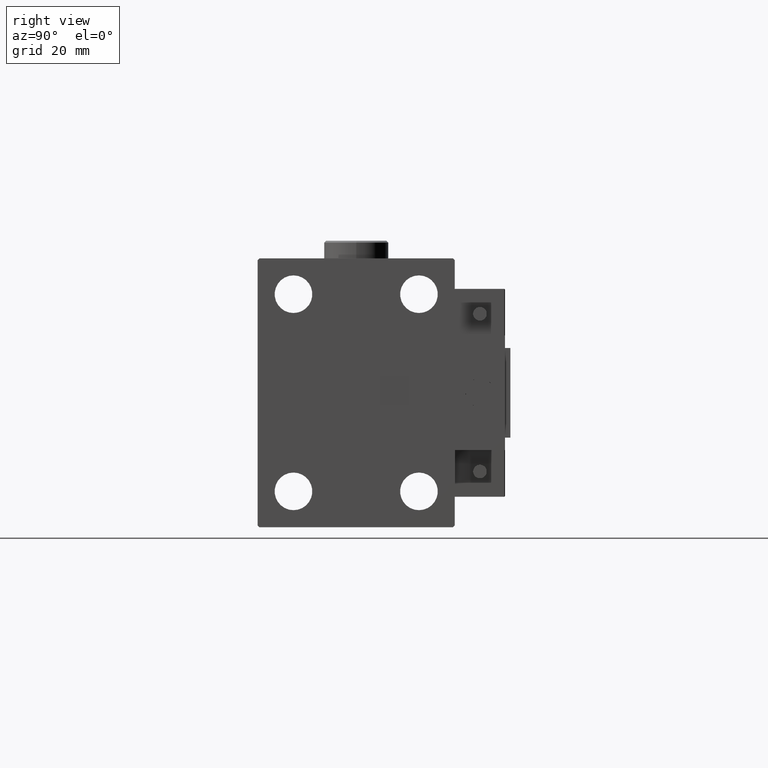
[diagram: clean part render]
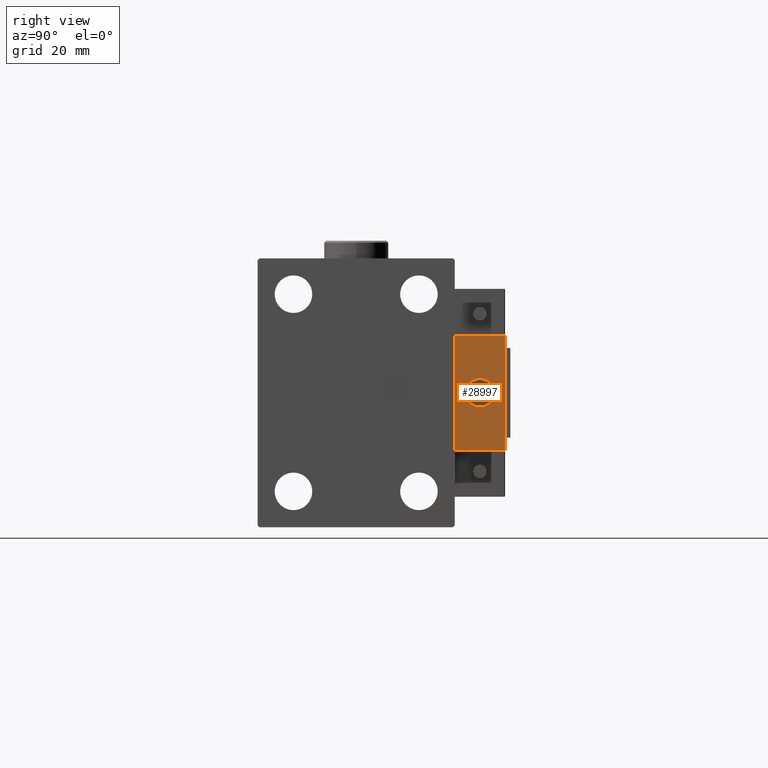
[diagram: same view with one face highlighted and labeled with its STEP entity id]
A machine part, right view. The second image highlights one B-rep face of the part: STEP entity #28997.
In plain terms, the highlighted planar face has unit normal (-1, 0, 0).
Its self-contained STEP definition (entity closure, byte-faithful):
#1384 = DIRECTION ( 'NONE',  ( -0.000000000000000000, 0.000000000000000000, 1.000000000000000000 ) ) ;
#1866 = DIRECTION ( 'NONE',  ( 0.000000000000000000, 0.000000000000000000, 1.000000000000000000 ) ) ;
#1978 = CARTESIAN_POINT ( 'NONE',  ( 10.00000000000000000, 7.000000000000000000, 15.99999999999999289 ) ) ;
#2376 = ORIENTED_EDGE ( 'NONE', *, *, #34386, .T. ) ;
#5510 = CARTESIAN_POINT ( 'NONE',  ( 10.00000000000000000, 7.000000000000000000, -16.00000000000000711 ) ) ;
#6626 = VECTOR ( 'NONE', #18307, 1000.000000000000000 ) ;
#8367 = PLANE ( 'NONE',  #32333 ) ;
#8414 = CIRCLE ( 'NONE', #20399, 4.000000000000000000 ) ;
#8656 = VERTEX_POINT ( 'NONE', #47011 ) ;
#9198 = EDGE_CURVE ( 'NONE', #8656, #45090, #50605, .T. ) ;
#9811 = ORIENTED_EDGE ( 'NONE', *, *, #48854, .T. ) ;
#10397 = LINE ( 'NONE', #23287, #33624 ) ;
#10785 = CARTESIAN_POINT ( 'NONE',  ( 10.00000000000000000, 7.000000000000000000, 15.99999999999999289 ) ) ;
#11591 = DIRECTION ( 'NONE',  ( 0.000000000000000000, 0.000000000000000000, 1.000000000000000000 ) ) ;
#11799 = AXIS2_PLACEMENT_3D ( 'NONE', #47498, #51005, #1866 ) ;
#12381 = EDGE_LOOP ( 'NONE', ( #52990, #52326, #35387, #9811 ) ) ;
#18307 = DIRECTION ( 'NONE',  ( 0.000000000000000000, 0.000000000000000000, -1.000000000000000000 ) ) ;
#19379 = CARTESIAN_POINT ( 'NONE',  ( 10.00000000000000000, 0.000000000000000000, 0.000000000000000000 ) ) ;
#20227 = VERTEX_POINT ( 'NONE', #24013 ) ;
#20399 = AXIS2_PLACEMENT_3D ( 'NONE', #19379, #30489, #11591 ) ;
#20455 = CARTESIAN_POINT ( 'NONE',  ( 10.00000000000000000, 4.898587196589412829E-16, -4.000000000000000000 ) ) ;
#22879 = VERTEX_POINT ( 'NONE', #40364 ) ;
#23287 = CARTESIAN_POINT ( 'NONE',  ( 10.00000000000000000, -7.000000000000000000, 15.99999999999999289 ) ) ;
#24013 = CARTESIAN_POINT ( 'NONE',  ( 10.00000000000000000, -7.000000000000000000, -16.00000000000000711 ) ) ;
#25546 = FACE_OUTER_BOUND ( 'NONE', #12381, .T. ) ;
#26661 = DIRECTION ( 'NONE',  ( 0.000000000000000000, -1.000000000000000000, 0.000000000000000000 ) ) ;
#26910 = LINE ( 'NONE', #10785, #49981 ) ;
#28997 = ADVANCED_FACE ( 'NONE', ( #33022, #25546 ), #8367, .F. ) ;
#29925 = DIRECTION ( 'NONE',  ( 0.000000000000000000, -1.000000000000000000, 0.000000000000000000 ) ) ;
#30489 = DIRECTION ( 'NONE',  ( -1.000000000000000000, 0.000000000000000000, 0.000000000000000000 ) ) ;
#31622 = VERTEX_POINT ( 'NONE', #41286 ) ;
#31836 = DIRECTION ( 'NONE',  ( 0.000000000000000000, 0.000000000000000000, -1.000000000000000000 ) ) ;
#32333 = AXIS2_PLACEMENT_3D ( 'NONE', #38127, #49999, #1384 ) ;
#32962 = ORIENTED_EDGE ( 'NONE', *, *, #34763, .T. ) ;
#33022 = FACE_BOUND ( 'NONE', #44677, .T. ) ;
#33624 = VECTOR ( 'NONE', #31836, 1000.000000000000000 ) ;
#34195 = LINE ( 'NONE', #5510, #49640 ) ;
#34386 = EDGE_CURVE ( 'NONE', #40813, #22879, #34936, .T. ) ;
#34763 = EDGE_CURVE ( 'NONE', #22879, #40813, #8414, .T. ) ;
#34936 = CIRCLE ( 'NONE', #11799, 4.000000000000000000 ) ;
#35387 = ORIENTED_EDGE ( 'NONE', *, *, #9198, .F. ) ;
#36605 = EDGE_CURVE ( 'NONE', #45090, #20227, #34195, .T. ) ;
#38127 = CARTESIAN_POINT ( 'NONE',  ( 10.00000000000000000, 0.000000000000000000, 0.000000000000000000 ) ) ;
#40364 = CARTESIAN_POINT ( 'NONE',  ( 10.00000000000000000, 0.000000000000000000, 4.000000000000000000 ) ) ;
#40813 = VERTEX_POINT ( 'NONE', #20455 ) ;
#41286 = CARTESIAN_POINT ( 'NONE',  ( 10.00000000000000000, -7.000000000000000000, 15.99999999999999289 ) ) ;
#44677 = EDGE_LOOP ( 'NONE', ( #32962, #2376 ) ) ;
#45090 = VERTEX_POINT ( 'NONE', #46575 ) ;
#46575 = CARTESIAN_POINT ( 'NONE',  ( 10.00000000000000000, 7.000000000000000000, -16.00000000000000711 ) ) ;
#47011 = CARTESIAN_POINT ( 'NONE',  ( 10.00000000000000000, 7.000000000000000000, 15.99999999999999289 ) ) ;
#47498 = CARTESIAN_POINT ( 'NONE',  ( 10.00000000000000000, 0.000000000000000000, 0.000000000000000000 ) ) ;
#48854 = EDGE_CURVE ( 'NONE', #8656, #31622, #26910, .T. ) ;
#49113 = EDGE_CURVE ( 'NONE', #31622, #20227, #10397, .T. ) ;
#49640 = VECTOR ( 'NONE', #29925, 1000.000000000000000 ) ;
#49981 = VECTOR ( 'NONE', #26661, 1000.000000000000000 ) ;
#49999 = DIRECTION ( 'NONE',  ( -1.000000000000000000, 0.000000000000000000, -0.000000000000000000 ) ) ;
#50605 = LINE ( 'NONE', #1978, #6626 ) ;
#51005 = DIRECTION ( 'NONE',  ( -1.000000000000000000, 0.000000000000000000, 0.000000000000000000 ) ) ;
#52326 = ORIENTED_EDGE ( 'NONE', *, *, #36605, .F. ) ;
#52990 = ORIENTED_EDGE ( 'NONE', *, *, #49113, .T. ) ;